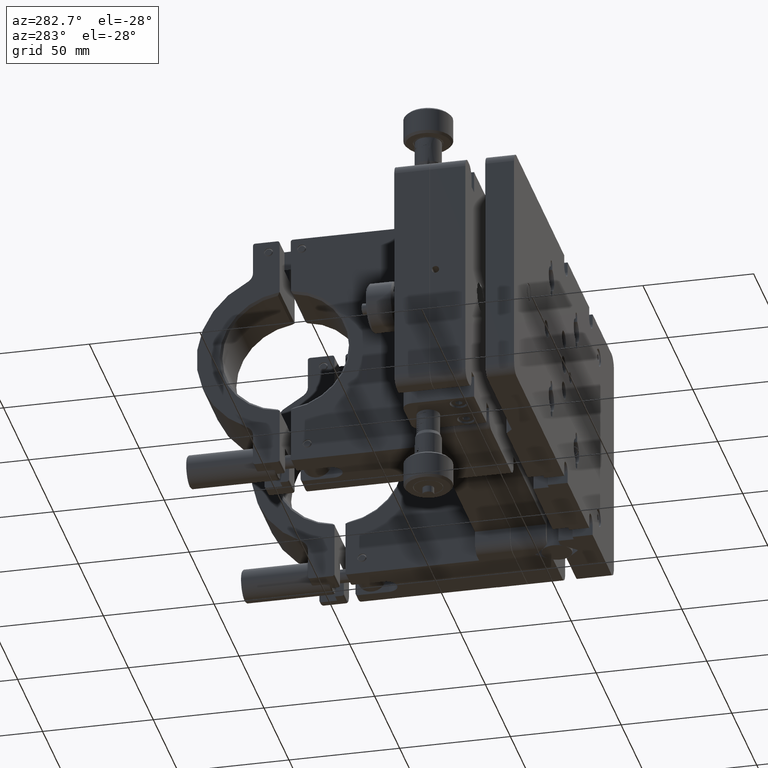
[diagram: clean part render]
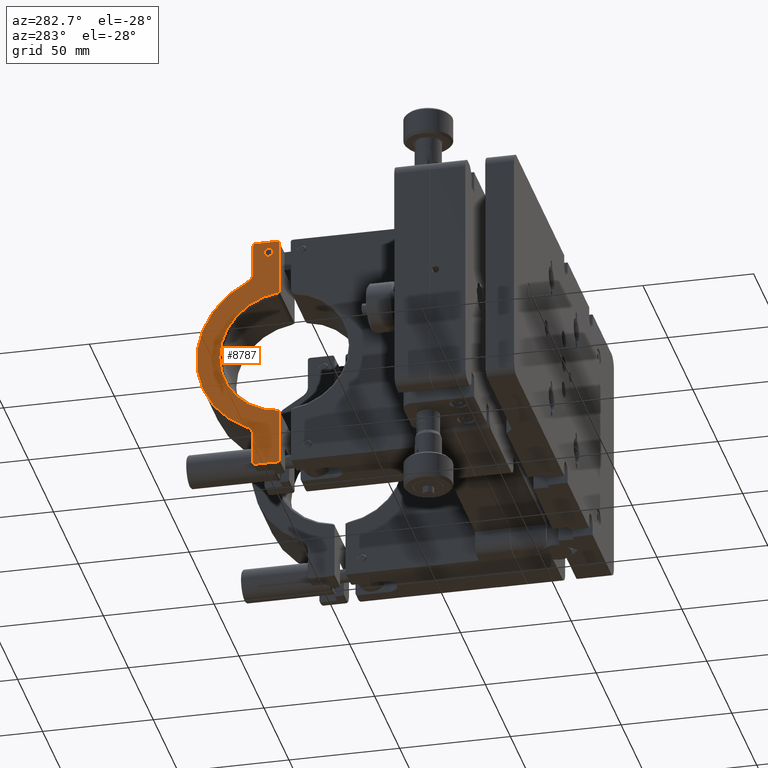
[diagram: same view with one face highlighted and labeled with its STEP entity id]
A machine part, auxiliary view. The second image highlights one B-rep face of the part: STEP entity #8787.
In plain terms, the highlighted planar face has unit normal (1, 0, 0).
Its self-contained STEP definition (entity closure, byte-faithful):
#89 = DIRECTION ( 'NONE',  ( -1.000000000000000000, -4.511439337623138347E-15, -1.783295733304157693E-15 ) ) ;
#465 = VECTOR ( 'NONE', #29620, 1000.000000000000000 ) ;
#864 = VERTEX_POINT ( 'NONE', #24190 ) ;
#1558 = CIRCLE ( 'NONE', #24479, 29.60000000000002274 ) ;
#1820 = CARTESIAN_POINT ( 'NONE',  ( -40.00000000000083134, 111.4874125874117823, -29.48669693442283801 ) ) ;
#1857 = VERTEX_POINT ( 'NONE', #33475 ) ;
#2239 = CARTESIAN_POINT ( 'NONE',  ( -40.00000000000080291, 123.3999999999992241, -72.77822610969769812 ) ) ;
#2738 = VERTEX_POINT ( 'NONE', #6910 ) ;
#2825 = ORIENTED_EDGE ( 'NONE', *, *, #43824, .F. ) ;
#2919 = CIRCLE ( 'NONE', #16845, 4.999999999999997335 ) ;
#3022 = CIRCLE ( 'NONE', #33318, 1.000000000000000888 ) ;
#3068 = CIRCLE ( 'NONE', #40758, 2.000000000000001776 ) ;
#3361 = DIRECTION ( 'NONE',  ( 1.529551730327910012E-15, -0.6425900800958179726, 0.7662101467368142016 ) ) ;
#4333 = EDGE_CURVE ( 'NONE', #41823, #14005, #10683, .T. ) ;
#4349 = VERTEX_POINT ( 'NONE', #50157 ) ;
#4505 = CARTESIAN_POINT ( 'NONE',  ( -40.00000000000087397, 108.8999999999991957, -1.581373592440459580E-14 ) ) ;
#4687 = ORIENTED_EDGE ( 'NONE', *, *, #36903, .T. ) ;
#4724 = VECTOR ( 'NONE', #39863, 1000.000000000000000 ) ;
#6043 = VERTEX_POINT ( 'NONE', #36509 ) ;
#6084 = LINE ( 'NONE', #2239, #41030 ) ;
#6164 = VERTEX_POINT ( 'NONE', #33174 ) ;
#6254 = FACE_BOUND ( 'NONE', #10044, .T. ) ;
#6746 = CARTESIAN_POINT ( 'NONE',  ( -40.00000000000103029, 122.3999999999991815, 53.99999999999998579 ) ) ;
#6910 = CARTESIAN_POINT ( 'NONE',  ( -40.00000000000098055, 111.3999999999991815, 53.99999999999998579 ) ) ;
#6959 = ORIENTED_EDGE ( 'NONE', *, *, #25609, .T. ) ;
#7338 = CARTESIAN_POINT ( 'NONE',  ( -40.00000000000103739, 128.3999999999991815, 40.55551750378732123 ) ) ;
#7673 = DIRECTION ( 'NONE',  ( 0.000000000000000000, 0.000000000000000000, -1.000000000000000000 ) ) ;
#7692 = AXIS2_PLACEMENT_3D ( 'NONE', #43170, #89, #15208 ) ;
#8722 = ORIENTED_EDGE ( 'NONE', *, *, #10056, .T. ) ;
#8747 = AXIS2_PLACEMENT_3D ( 'NONE', #38584, #34729, #22937 ) ;
#8787 = ADVANCED_FACE ( 'NONE', ( #6254, #49088 ), #13961, .F. ) ;
#9971 = ORIENTED_EDGE ( 'NONE', *, *, #31404, .T. ) ;
#10044 = EDGE_LOOP ( 'NONE', ( #23126, #50675 ) ) ;
#10056 = EDGE_CURVE ( 'NONE', #14005, #6164, #23450, .T. ) ;
#10539 = CARTESIAN_POINT ( 'NONE',  ( -40.00000000000093792, 111.3999999999991815, 29.59092576319346435 ) ) ;
#10683 = LINE ( 'NONE', #34794, #21640 ) ;
#11105 = LINE ( 'NONE', #13971, #465 ) ;
#11720 = CARTESIAN_POINT ( 'NONE',  ( -40.00000000000103739, 122.3999999999991815, 54.99999999999998579 ) ) ;
#11729 = EDGE_CURVE ( 'NONE', #1857, #6043, #29140, .T. ) ;
#13017 = CARTESIAN_POINT ( 'NONE',  ( -40.00000000000087397, 108.8999999999991957, -1.581373592440459580E-14 ) ) ;
#13565 = AXIS2_PLACEMENT_3D ( 'NONE', #25756, #41389, #21910 ) ;
#13927 = ORIENTED_EDGE ( 'NONE', *, *, #22671, .T. ) ;
#13961 = PLANE ( 'NONE',  #13565 ) ;
#13971 = CARTESIAN_POINT ( 'NONE',  ( -40.00000000000048317, 43.89999999999920988, -55.00000000000007105 ) ) ;
#14005 = VERTEX_POINT ( 'NONE', #35632 ) ;
#14034 = CARTESIAN_POINT ( 'NONE',  ( -40.00000000000100187, 116.3999999999991672, 51.99999999999999289 ) ) ;
#14100 = ORIENTED_EDGE ( 'NONE', *, *, #11729, .T. ) ;
#14445 = DIRECTION ( 'NONE',  ( -1.000000000000000000, -4.511439337623138347E-15, -1.783295733304157693E-15 ) ) ;
#14693 = EDGE_CURVE ( 'NONE', #2738, #35563, #43466, .T. ) ;
#15011 = DIRECTION ( 'NONE',  ( 1.387778780781446464E-15, 0.000000000000000000, -1.000000000000000000 ) ) ;
#15208 = DIRECTION ( 'NONE',  ( 0.000000000000000000, 0.000000000000000000, -1.000000000000000000 ) ) ;
#15549 = DIRECTION ( 'NONE',  ( 1.000000000000000000, 4.511439337623138347E-15, 1.783295733304157693E-15 ) ) ;
#15796 = DIRECTION ( 'NONE',  ( 1.734723475976806700E-15, 3.469446951953613696E-16, -1.000000000000000000 ) ) ;
#15967 = EDGE_CURVE ( 'NONE', #19979, #41823, #3022, .T. ) ;
#16139 = DIRECTION ( 'NONE',  ( -1.000000000000000000, -4.511439337623138347E-15, -1.783295733304157693E-15 ) ) ;
#16845 = AXIS2_PLACEMENT_3D ( 'NONE', #35052, #15549, #31207 ) ;
#17552 = CIRCLE ( 'NONE', #7692, 1.000000000000000888 ) ;
#18552 = DIRECTION ( 'NONE',  ( 0.000000000000000000, 0.000000000000000000, -1.000000000000000000 ) ) ;
#18728 = VERTEX_POINT ( 'NONE', #32875 ) ;
#19798 = CIRCLE ( 'NONE', #23891, 1.000000000000000888 ) ;
#19842 = DIRECTION ( 'NONE',  ( 1.790234627208064527E-15, 3.466198819422834469E-16, -1.000000000000000000 ) ) ;
#19979 = VERTEX_POINT ( 'NONE', #11720 ) ;
#19989 = CARTESIAN_POINT ( 'NONE',  ( -40.00000000000099476, 116.3999999999991672, 49.99999999999998579 ) ) ;
#21272 = AXIS2_PLACEMENT_3D ( 'NONE', #4505, #35304, #15796 ) ;
#21640 = VECTOR ( 'NONE', #22488, 1000.000000000000000 ) ;
#21910 = DIRECTION ( 'NONE',  ( 1.790234627208064527E-15, 3.466198819422834962E-16, -1.000000000000000000 ) ) ;
#22127 = EDGE_CURVE ( 'NONE', #35451, #26352, #1558, .T. ) ;
#22310 = EDGE_CURVE ( 'NONE', #6164, #864, #41708, .T. ) ;
#22488 = DIRECTION ( 'NONE',  ( 1.790234627208064527E-15, 3.466198819422834469E-16, -1.000000000000000000 ) ) ;
#22671 = EDGE_CURVE ( 'NONE', #47882, #35451, #40274, .T. ) ;
#22937 = DIRECTION ( 'NONE',  ( -3.469446951953611033E-15, 0.000000000000000000, 1.000000000000000000 ) ) ;
#23126 = ORIENTED_EDGE ( 'NONE', *, *, #34916, .F. ) ;
#23340 = ORIENTED_EDGE ( 'NONE', *, *, #24780, .T. ) ;
#23450 = CIRCLE ( 'NONE', #24299, 4.999999999999997335 ) ;
#23588 = ORIENTED_EDGE ( 'NONE', *, *, #39329, .T. ) ;
#23891 = AXIS2_PLACEMENT_3D ( 'NONE', #42548, #38963, #7673 ) ;
#24180 = EDGE_CURVE ( 'NONE', #26352, #35563, #50259, .T. ) ;
#24190 = CARTESIAN_POINT ( 'NONE',  ( -40.00000000000088107, 126.2333333333325243, -36.04934889225542349 ) ) ;
#24299 = AXIS2_PLACEMENT_3D ( 'NONE', #7338, #41453, #15011 ) ;
#24479 = AXIS2_PLACEMENT_3D ( 'NONE', #13017, #32258, #28402 ) ;
#24780 = EDGE_CURVE ( 'NONE', #48751, #1857, #6084, .T. ) ;
#24844 = LINE ( 'NONE', #28695, #36219 ) ;
#25443 = VECTOR ( 'NONE', #3361, 999.9999999999998863 ) ;
#25609 = EDGE_CURVE ( 'NONE', #28016, #4349, #19798, .T. ) ;
#25756 = CARTESIAN_POINT ( 'NONE',  ( -40.00000000000115108, 148.8999999999991815, 55.00000000000000000 ) ) ;
#25831 = DIRECTION ( 'NONE',  ( 1.790234627208064527E-15, 3.466198819422834469E-16, -1.000000000000000000 ) ) ;
#26252 = CARTESIAN_POINT ( 'NONE',  ( -40.00000000000083844, 122.3999999999992099, -54.00000000000004263 ) ) ;
#26328 = EDGE_CURVE ( 'NONE', #40921, #19979, #24844, .T. ) ;
#26352 = VERTEX_POINT ( 'NONE', #47927 ) ;
#27948 = DIRECTION ( 'NONE',  ( -4.514927566733860879E-15, 1.000000000000000000, 3.457653458388622086E-16 ) ) ;
#28016 = VERTEX_POINT ( 'NONE', #35253 ) ;
#28291 = AXIS2_PLACEMENT_3D ( 'NONE', #26252, #14445, #18552 ) ;
#28402 = DIRECTION ( 'NONE',  ( 1.875376730785736141E-15, 4.688441826964340354E-16, -1.000000000000000000 ) ) ;
#28695 = CARTESIAN_POINT ( 'NONE',  ( -40.00000000000067502, 43.89999999999916724, 54.99999999999995737 ) ) ;
#29140 = CIRCLE ( 'NONE', #28291, 1.000000000000000888 ) ;
#29620 = DIRECTION ( 'NONE',  ( 4.514927566733860879E-15, -1.000000000000000000, -3.457653458388622086E-16 ) ) ;
#30866 = CIRCLE ( 'NONE', #8747, 2.000000000000001776 ) ;
#31207 = DIRECTION ( 'NONE',  ( 1.387778780781446464E-15, 0.000000000000000000, -1.000000000000000000 ) ) ;
#31266 = VERTEX_POINT ( 'NONE', #14034 ) ;
#31298 = ORIENTED_EDGE ( 'NONE', *, *, #4333, .T. ) ;
#31404 = EDGE_CURVE ( 'NONE', #864, #48751, #2919, .T. ) ;
#32086 = DIRECTION ( 'NONE',  ( -4.272943603140744491E-15, 0.6425900800958175285, 0.7662101467368145347 ) ) ;
#32258 = DIRECTION ( 'NONE',  ( 1.000000000000000000, 4.511439337623138347E-15, 1.783295733304157693E-15 ) ) ;
#32875 = CARTESIAN_POINT ( 'NONE',  ( -40.00000000000098765, 116.3999999999991957, 47.99999999999998579 ) ) ;
#33174 = CARTESIAN_POINT ( 'NONE',  ( -40.00000000000101608, 126.2333333333325101, 36.04934889225539507 ) ) ;
#33318 = AXIS2_PLACEMENT_3D ( 'NONE', #6746, #49074, #33939 ) ;
#33475 = CARTESIAN_POINT ( 'NONE',  ( -40.00000000000083844, 123.3999999999992099, -54.00000000000004263 ) ) ;
#33939 = DIRECTION ( 'NONE',  ( 0.000000000000000000, 0.000000000000000000, -1.000000000000000000 ) ) ;
#34210 = ORIENTED_EDGE ( 'NONE', *, *, #22127, .T. ) ;
#34292 = VECTOR ( 'NONE', #19842, 1000.000000000000000 ) ;
#34729 = DIRECTION ( 'NONE',  ( -1.000000000000000000, -4.511439337623138347E-15, -1.783295733304157693E-15 ) ) ;
#34733 = ORIENTED_EDGE ( 'NONE', *, *, #15967, .T. ) ;
#34794 = CARTESIAN_POINT ( 'NONE',  ( -40.00000000000105160, 123.3999999999991815, 63.94182537019791823 ) ) ;
#34916 = EDGE_CURVE ( 'NONE', #31266, #18728, #30866, .T. ) ;
#34950 = ORIENTED_EDGE ( 'NONE', *, *, #24180, .T. ) ;
#35017 = CARTESIAN_POINT ( 'NONE',  ( -40.00000000000086686, 123.3999999999992099, -40.55551750378734255 ) ) ;
#35052 = CARTESIAN_POINT ( 'NONE',  ( -40.00000000000088818, 128.3999999999992099, -40.55551750378733544 ) ) ;
#35125 = DIRECTION ( 'NONE',  ( -3.469446951953611033E-15, 0.000000000000000000, 1.000000000000000000 ) ) ;
#35253 = CARTESIAN_POINT ( 'NONE',  ( -40.00000000000078870, 112.3999999999992099, -55.00000000000004263 ) ) ;
#35304 = DIRECTION ( 'NONE',  ( -1.000000000000000000, -4.511439337623138347E-15, -1.783295733304157693E-15 ) ) ;
#35451 = VERTEX_POINT ( 'NONE', #1820 ) ;
#35563 = VERTEX_POINT ( 'NONE', #49732 ) ;
#35632 = CARTESIAN_POINT ( 'NONE',  ( -40.00000000000100897, 123.3999999999991815, 40.55551750378731413 ) ) ;
#35766 = EDGE_CURVE ( 'NONE', #18728, #31266, #3068, .T. ) ;
#36012 = VECTOR ( 'NONE', #32086, 1000.000000000000000 ) ;
#36020 = CARTESIAN_POINT ( 'NONE',  ( -40.00000000000104450, 111.3999999999991672, 87.26906796063448724 ) ) ;
#36219 = VECTOR ( 'NONE', #27948, 1000.000000000000000 ) ;
#36445 = EDGE_LOOP ( 'NONE', ( #34210, #34950, #40059, #4687, #46592, #34733, #31298, #8722, #43418, #9971, #23340, #14100, #23588, #6959, #2825, #13927 ) ) ;
#36509 = CARTESIAN_POINT ( 'NONE',  ( -40.00000000000083134, 122.3999999999992099, -55.00000000000004263 ) ) ;
#36903 = EDGE_CURVE ( 'NONE', #2738, #40921, #17552, .T. ) ;
#38584 = CARTESIAN_POINT ( 'NONE',  ( -40.00000000000099476, 116.3999999999991672, 49.99999999999998579 ) ) ;
#38963 = DIRECTION ( 'NONE',  ( -1.000000000000000000, -4.511439337623138347E-15, -1.783295733304157693E-15 ) ) ;
#39329 = EDGE_CURVE ( 'NONE', #6043, #28016, #11105, .T. ) ;
#39863 = DIRECTION ( 'NONE',  ( 1.790234627208064527E-15, 3.466198819422834469E-16, -1.000000000000000000 ) ) ;
#40059 = ORIENTED_EDGE ( 'NONE', *, *, #14693, .F. ) ;
#40274 = LINE ( 'NONE', #47474, #36012 ) ;
#40758 = AXIS2_PLACEMENT_3D ( 'NONE', #19989, #16139, #35125 ) ;
#40921 = VERTEX_POINT ( 'NONE', #42351 ) ;
#41030 = VECTOR ( 'NONE', #25831, 1000.000000000000000 ) ;
#41389 = DIRECTION ( 'NONE',  ( 1.000000000000000000, 4.511439337623138347E-15, 1.790234627208066105E-15 ) ) ;
#41453 = DIRECTION ( 'NONE',  ( 1.000000000000000000, 4.511439337623138347E-15, 1.783295733304157693E-15 ) ) ;
#41708 = CIRCLE ( 'NONE', #21272, 40.00000000000000711 ) ;
#41823 = VERTEX_POINT ( 'NONE', #43520 ) ;
#42351 = CARTESIAN_POINT ( 'NONE',  ( -40.00000000000098765, 112.3999999999991815, 54.99999999999998579 ) ) ;
#42548 = CARTESIAN_POINT ( 'NONE',  ( -40.00000000000078870, 112.3999999999992099, -54.00000000000004263 ) ) ;
#42660 = LINE ( 'NONE', #43169, #34292 ) ;
#43169 = CARTESIAN_POINT ( 'NONE',  ( -40.00000000000104450, 111.3999999999991672, 87.26906796063448724 ) ) ;
#43170 = CARTESIAN_POINT ( 'NONE',  ( -40.00000000000098765, 112.3999999999991815, 53.99999999999998579 ) ) ;
#43418 = ORIENTED_EDGE ( 'NONE', *, *, #22310, .T. ) ;
#43466 = LINE ( 'NONE', #36020, #4724 ) ;
#43520 = CARTESIAN_POINT ( 'NONE',  ( -40.00000000000103739, 123.3999999999991815, 53.99999999999998579 ) ) ;
#43824 = EDGE_CURVE ( 'NONE', #47882, #4349, #42660, .T. ) ;
#46592 = ORIENTED_EDGE ( 'NONE', *, *, #26328, .T. ) ;
#47170 = CARTESIAN_POINT ( 'NONE',  ( -40.00000000000083134, 111.3999999999992099, -29.59092576319349632 ) ) ;
#47474 = CARTESIAN_POINT ( 'NONE',  ( -40.00000000000083134, 111.3999999999992099, -29.59092576319349988 ) ) ;
#47882 = VERTEX_POINT ( 'NONE', #47170 ) ;
#47927 = CARTESIAN_POINT ( 'NONE',  ( -40.00000000000093792, 111.4874125874117539, 29.48669693442280959 ) ) ;
#48751 = VERTEX_POINT ( 'NONE', #35017 ) ;
#49074 = DIRECTION ( 'NONE',  ( -1.000000000000000000, -4.511439337623138347E-15, -1.783295733304157693E-15 ) ) ;
#49088 = FACE_OUTER_BOUND ( 'NONE', #36445, .T. ) ;
#49732 = CARTESIAN_POINT ( 'NONE',  ( -40.00000000000093792, 111.3999999999991815, 29.59092576319346080 ) ) ;
#50157 = CARTESIAN_POINT ( 'NONE',  ( -40.00000000000078160, 111.3999999999992099, -54.00000000000004974 ) ) ;
#50259 = LINE ( 'NONE', #10539, #25443 ) ;
#50675 = ORIENTED_EDGE ( 'NONE', *, *, #35766, .F. ) ;